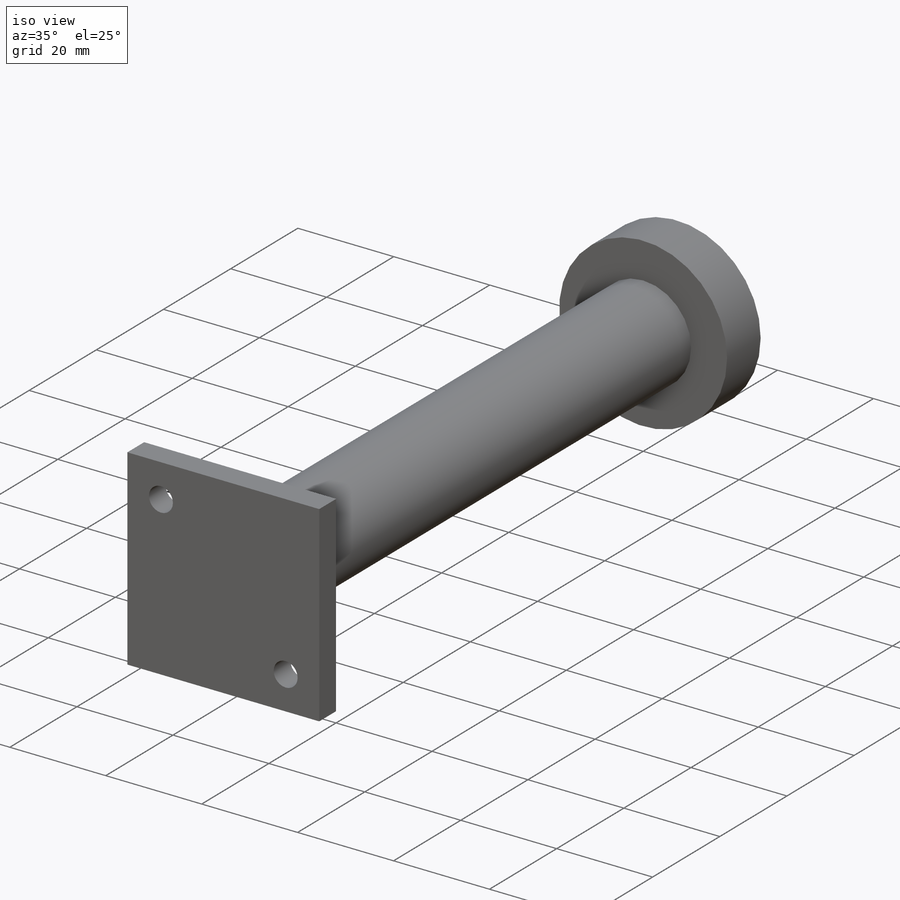
[diagram: iso view]
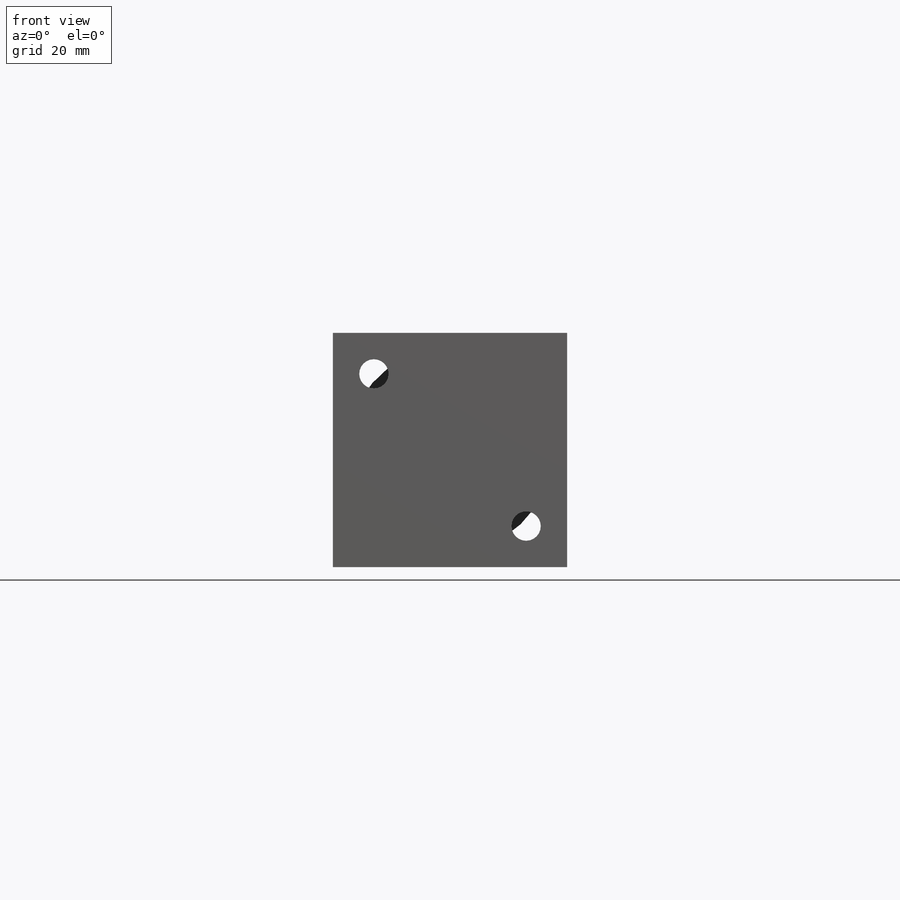
[diagram: front view]
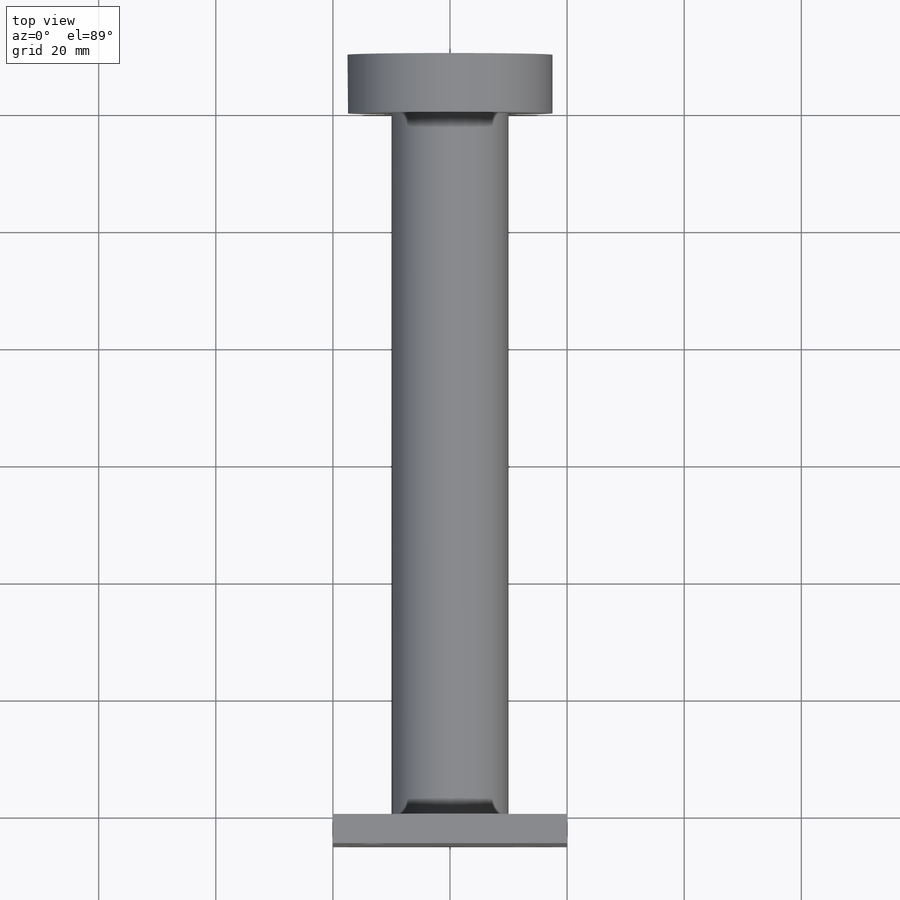
[diagram: top view]
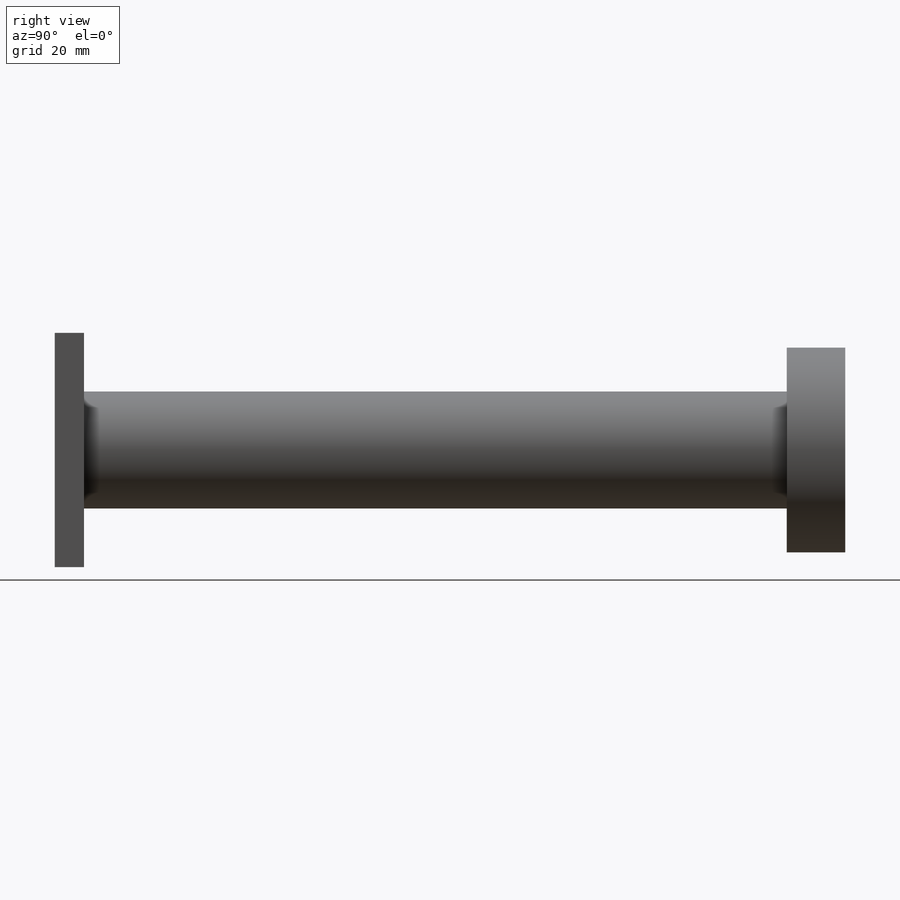
[diagram: right view]
SOLIDWORKS PART (.sldprt)
format: sldprt  version: not decoded by parser v0  size: 182,784 bytes
history: native  units: mm
features: sketch x5, plane x3, extrude x3, cut_extrude x2, material x1 (+9 scaffold rows collapsed)
feature tree (23):
  scaffold x9  (default folders/planes/origin — collapsed)
  material  "Matériau <non spécifié>"
  plane  "Plan de face"
  plane  "Plan de dessus"
  plane  "Plan de droite"
  sketch  "Esquisse1"  dims[D1=20.0mm]
  extrude  "Boss.-Extru.1"  Depth=100mm
  sketch  "Esquisse2"  dims[D1=35.0mm]
  extrude  "Boss.-Extru.2"  Depth=30mm
  sketch  "Esquisse3"  dims[D1=40.0mm D2=40.0mm D3=20.0mm D4=20.0mm]
  extrude  "Boss.-Extru.3"  Depth=5mm
  sketch  "Esquisse4"  dims[c1.D5=5.0mm c1.D6=5.0mm c1.D1=7.0mm c1.D2=~8.673475mm c2.D2=90.0deg c3.D2=7.0mm c3.D3=7.0mm c3.D4=7.0mm]
  cut_extrude  "Enlèv. mat.-Extru.1"  Depth=5mm
  sketch  "Esquisse5"
  cut_extrude  "Enlèv. mat.-Extru.3"  Depth=20mm
decode coverage: 9 of 10 modeling features carry decoded parameters
note: ~ marks probable driven/reference dimensions
note: suppression state not decoded; provenance and decode notes live in map.json
